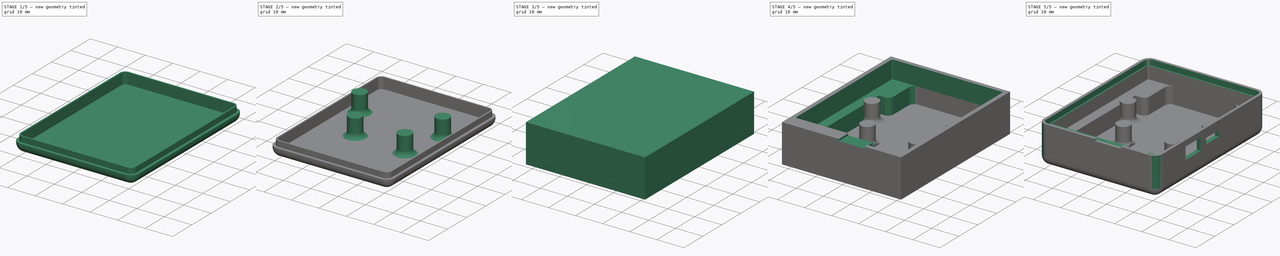
[diagram: build sequence overview — one tinted view per stage of 5, left to right]
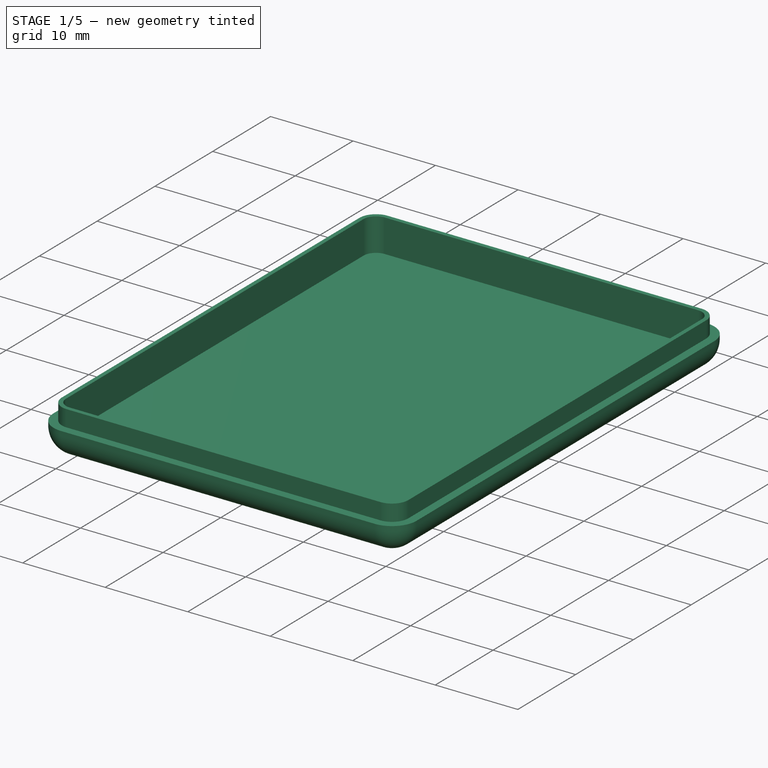
[diagram: stage 1 of 5 — iso view after this stage's code; geometry added in this stage tinted green]
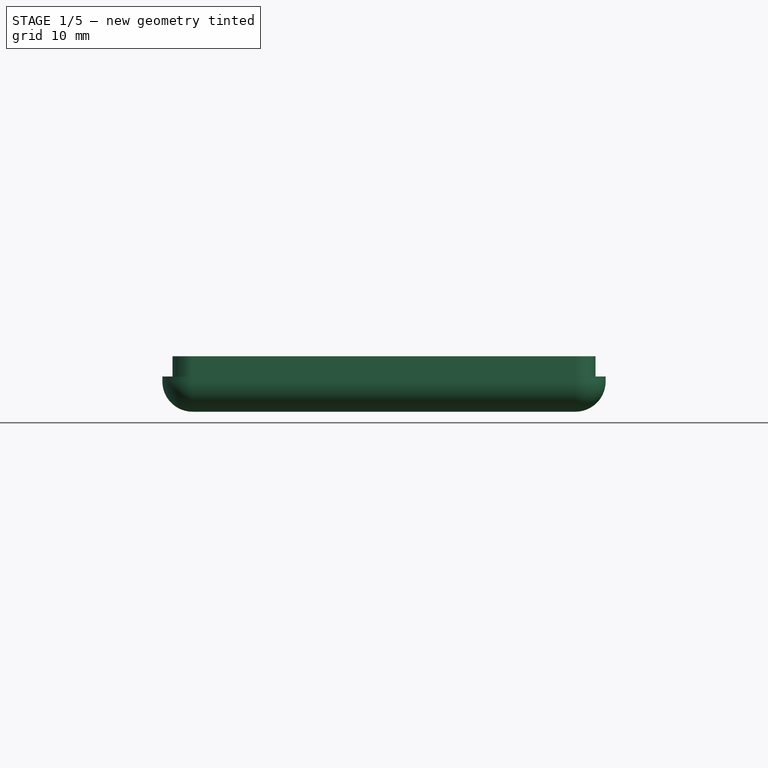
[diagram: stage 1 of 5 — front view after this stage's code; geometry added in this stage tinted green]
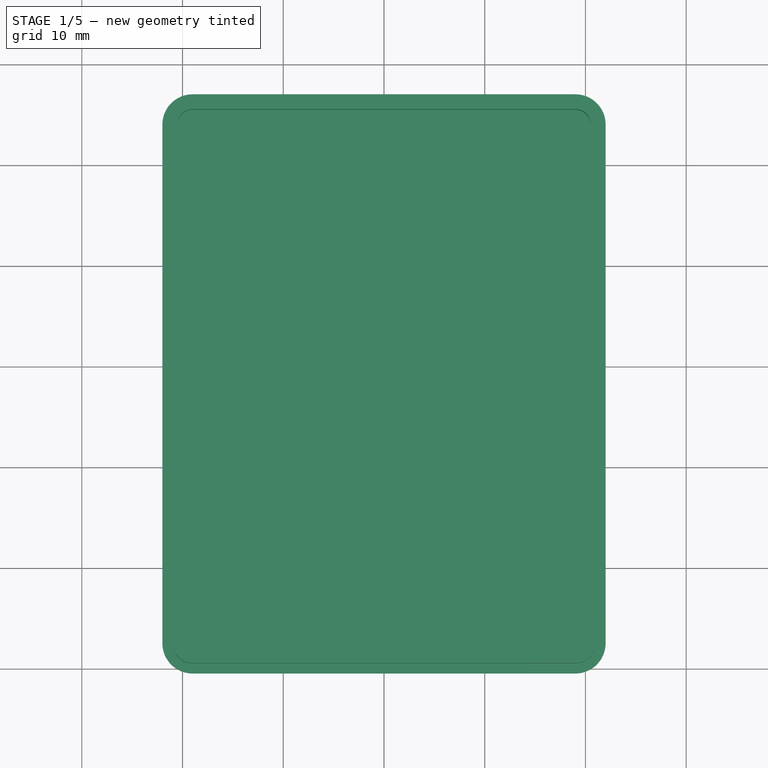
[diagram: stage 1 of 5 — top view after this stage's code; geometry added in this stage tinted green]
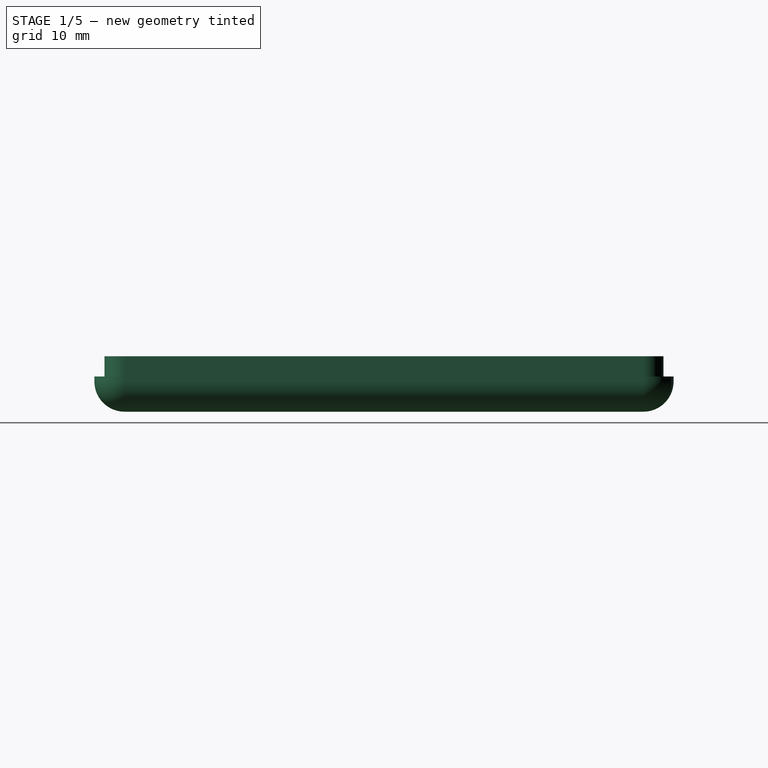
[diagram: stage 1 of 5 — right view after this stage's code; geometry added in this stage tinted green]
FCSTD DOCUMENT  (FreeCAD 0.17R13541 (Git))
Label: case
License: All rights reserved
LicenseURL: http://en.wikipedia.org/wiki/All_rights_reserved
objects: Sketcher::SketchObject×20, PartDesign::Pocket×12, PartDesign::Fillet×9, PartDesign::Pad×6, TechDraw::DrawViewSection×3, App::DocumentObjectGroup×2, PartDesign::Body×2, TechDraw::DrawViewPart×2, Spreadsheet::Sheet×1, TechDraw::DrawSVGTemplate×1, Part::Feature×1, PartDesign::Chamfer×1, TechDraw::DrawPage×1
note: 69 computed .brp shape members not serialized (recipe doc carries the construction recipe); baked Part::Feature solids carry a one-line shape summary decoded from their .brp

FEATURE [Sketcher::SketchObject] Sketch008  label="PCB001"
  MapMode = 2
  Support = -> [XY_Plane001]
  expr: Constraints[8] = Spreadsheet.Width
  expr: Constraints[9] = Spreadsheet.Height
  sketch-geometry (4):
    g0: LineSegment StartX=-20 StartY=25 StartZ=0 EndX=20 EndY=25 EndZ=0
    g1: LineSegment StartX=20 StartY=25 StartZ=0 EndX=20 EndY=-25 EndZ=0
    g2: LineSegment StartX=20 StartY=-25 StartZ=0 EndX=-20 EndY=-25 EndZ=0
    g3: LineSegment StartX=-20 StartY=-25 StartZ=0 EndX=-20 EndY=25 EndZ=0
  constraints (12):
    c: Coincident(g0,g1)
    c: Coincident(g1,g2)
    c: Coincident(g2,g3)
    c: Coincident(g3,g0)
    c: Horizontal(g0)
    c: Horizontal(g2)
    c: Vertical(g1)
    c: Vertical(g3)
    c: DistanceX(g0,g0) = 40
    c: DistanceY(g3,g3) = 50
    c: Symmetric(g0,g0,g-2)
    c: Symmetric(g0,g2,g-1)
FEATURE [Sketcher::SketchObject] Sketch009  label="Outer wall001"
  ExternalGeometry = -> [Sketch]
  MapMode = 5
  Support = -> [XY_Plane001]
  expr: Constraints[11] = Spreadsheet.OuterWall + Spreadsheet.BatteryConnectorDepth
  expr: Constraints[10] = Spreadsheet.OuterWall
  expr: Constraints[9] = Spreadsheet.OuterWall
  expr: Constraints[8] = Spreadsheet.OuterWall
  sketch-geometry (4):
    g0: LineSegment StartX=-22 StartY=27 StartZ=0 EndX=22 EndY=27 EndZ=0
    g1: LineSegment StartX=22 StartY=27 StartZ=0 EndX=22 EndY=-30.5 EndZ=0
    g2: LineSegment StartX=22 StartY=-30.5 StartZ=0 EndX=-22 EndY=-30.5 EndZ=0
    g3: LineSegment StartX=-22 StartY=-30.5 StartZ=0 EndX=-22 EndY=27 EndZ=0
  constraints (12):
    c: Coincident(g0,g1)
    c: Coincident(g1,g2)
    c: Coincident(g2,g3)
    c: Coincident(g3,g0)
    c: Horizontal(g0)
    c: Horizontal(g2)
    c: Vertical(g1)
    c: Vertical(g3)
    c: DistanceY(g-6,g0) = 2
    c: DistanceX(g-6,g0) = 2
    c: DistanceX(g2,g-5) = 2
    c: DistanceY(g2,g-5) = 5.5
FEATURE [PartDesign::Pad] Pad001
  Length = 5.5
  Length2 = 100
  Profile = -> Sketch009
  Type = 0
  expr: Length = Spreadsheet.LidHeight
FEATURE [Sketcher::SketchObject] Sketch010
  MapMode = 5
  Placement = pos=(0,0,5.5) rot=(0,0,1;0rad)
  Support = -> [Pad001]
  expr: Constraints[15] = Spreadsheet.Width + Spreadsheet.OuterWall * 2 - Spreadsheet.LipThickness * 2 - Spreadsheet.LidInnerWall * 2
  expr: Constraints[14] = Spreadsheet.BatteryConnectorDepth / 2
  expr: Constraints[9] = Spreadsheet.Height + Spreadsheet.BatteryConnectorDepth + Spreadsheet.OuterWall * 2 - Spreadsheet.LipThickness * 2 - Spreadsheet.LidInnerWall * 2
  sketch-geometry (5):
    g0: LineSegment StartX=-20.5 StartY=25.5 StartZ=0 EndX=20.5 EndY=25.5 EndZ=0
    g1: LineSegment StartX=20.5 StartY=25.5 StartZ=0 EndX=20.5 EndY=-29 EndZ=0
    g2: LineSegment StartX=20.5 StartY=-29 StartZ=0 EndX=-20.5 EndY=-29 EndZ=0
    g3: LineSegment StartX=-20.5 StartY=-29 StartZ=0 EndX=-20.5 EndY=25.5 EndZ=0
    g4: LineSegment [constr] StartX=-20.5 StartY=-1.75 StartZ=0 EndX=20.5 EndY=-1.75 EndZ=0
  constraints (16):
    c: Coincident(g0,g1)
    c: Coincident(g1,g2)
    c: Coincident(g2,g3)
    c: Coincident(g3,g0)
    c: Horizontal(g0)
    c: Horizontal(g2)
    c: Vertical(g1)
    c: Vertical(g3)
    c: Symmetric(g0,g0,g-2)
    c: DistanceY(g3,g3) = 54.5
    c: PointOnObject(g4,g3)
    c: PointOnObject(g4,g1)
    c: Horizontal(g4)
    c: Symmetric(g0,g2,g4)
    c: DistanceY(g4,g-1) = 1.75
    c: DistanceX(g0,g0) = 41
FEATURE [PartDesign::Pocket] Pocket006
  BaseFeature = -> Pad001
  Length = 4
  Length2 = 100
  Profile = -> Sketch010
  Type = 0
  expr: Length = Spreadsheet.LipHeight + Spreadsheet.LidSpace
FEATURE [Sketcher::SketchObject] Sketch011
  ExternalGeometry = -> [Pocket006]
  MapMode = 5
  Placement = pos=(0,0,5.5) rot=(0,0,1;0rad)
  Support = -> [Pocket006]
  expr: Constraints[26] = Spreadsheet.LipThickness + Spreadsheet.Delta
  expr: Constraints[25] = Spreadsheet.LipThickness + Spreadsheet.Delta
  expr: Constraints[24] = Spreadsheet.LidInnerWall
  expr: Constraints[23] = Spreadsheet.LidInnerWall
  expr: Constraints[18] = Spreadsheet.BatteryConnectorDepth / 2
  sketch-geometry (9):
    g0: LineSegment StartX=-21 StartY=26 StartZ=0 EndX=21 EndY=26 EndZ=0
    g1: LineSegment StartX=21 StartY=26 StartZ=0 EndX=21 EndY=-29.5 EndZ=0
    g2: LineSegment StartX=21 StartY=-29.5 StartZ=0 EndX=-21 EndY=-29.5 EndZ=0
    g3: LineSegment StartX=-21 StartY=-29.5 StartZ=0 EndX=-21 EndY=26 EndZ=0
    g4: LineSegment StartX=-22.01 StartY=27.01 StartZ=0 EndX=22.01 EndY=27.01 EndZ=0
    g5: LineSegment StartX=22.01 StartY=27.01 StartZ=0 EndX=22.01 EndY=-30.51 EndZ=0
    g6: LineSegment StartX=22.01 StartY=-30.51 StartZ=0 EndX=-22.01 EndY=-30.51 EndZ=0
    g7: LineSegment StartX=-22.01 StartY=-30.51 StartZ=0 EndX=-22.01 EndY=27.01 EndZ=0
    g8: LineSegment [constr] StartX=21 StartY=-1.75 StartZ=0 EndX=-21 EndY=-1.75 EndZ=0
  constraints (27):
    c: Coincident(g0,g1)
    c: Coincident(g1,g2)
    c: Coincident(g2,g3)
    c: Coincident(g3,g0)
    c: Horizontal(g0)
    c: Horizontal(g2)
    c: Vertical(g1)
    c: Vertical(g3)
    c: Coincident(g4,g5)
    c: Coincident(g5,g6)
    c: Coincident(g6,g7)
    c: Coincident(g7,g4)
    c: Horizontal(g4)
    c: Horizontal(g6)
    c: Vertical(g5)
    c: Vertical(g7)
    c: PointOnObject(g8,g3)
    c: PointOnObject(g8,g1)
    c: DistanceY(g8,g-1) = 1.75
    c: Symmetric(g2,g0,g8)
    c: Symmetric(g4,g6,g8)
    c: Symmetric(g0,g0,g-2)
    c: Symmetric(g4,g4,g-2)
    c: DistanceX(g0,g-3) = 0.5
    c: DistanceY(g-3,g0) = 0.5
    c: DistanceX(g0,g4) = 1.01
    c: DistanceY(g0,g4) = 1.01
FEATURE [PartDesign::Pocket] Pocket007
  BaseFeature = -> Pocket006
  Length = 2
  Length2 = 100
  Profile = -> Sketch011
  Type = 0
  expr: Length = Spreadsheet.LipHeight
FEATURE [PartDesign::Fillet] Fillet006  label="LipInternalFillet"
  Base = -> Pocket007 [Edge32,Edge29,Edge34,Edge30]
  BaseFeature = -> Pocket007
  Radius = 1.5
  expr: Radius = Spreadsheet.LidInnerFillet
FEATURE [PartDesign::Fillet] Fillet007  label="LipExternalFillet"
  Base = -> Fillet006 [Edge30,Edge29,Edge34,Edge32]
  BaseFeature = -> Fillet006
  Radius = 2
  expr: Radius = Spreadsheet.LidMatingFillet
FEATURE [PartDesign::Fillet] Fillet008  label="ExternalFillet"
  Base = -> Fillet007 [Edge55,Edge54,Edge59,Edge57,Face24]
  BaseFeature = -> Fillet007
  Radius = 3
  expr: Radius = Spreadsheet.LidOuterFillet
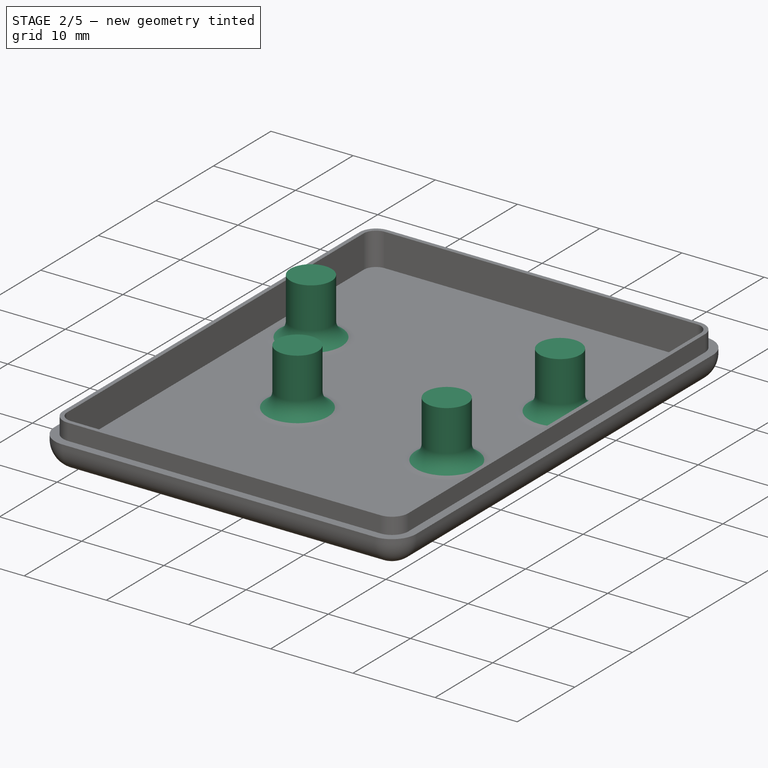
[diagram: stage 2 of 5 — iso view after this stage's code; geometry added in this stage tinted green]
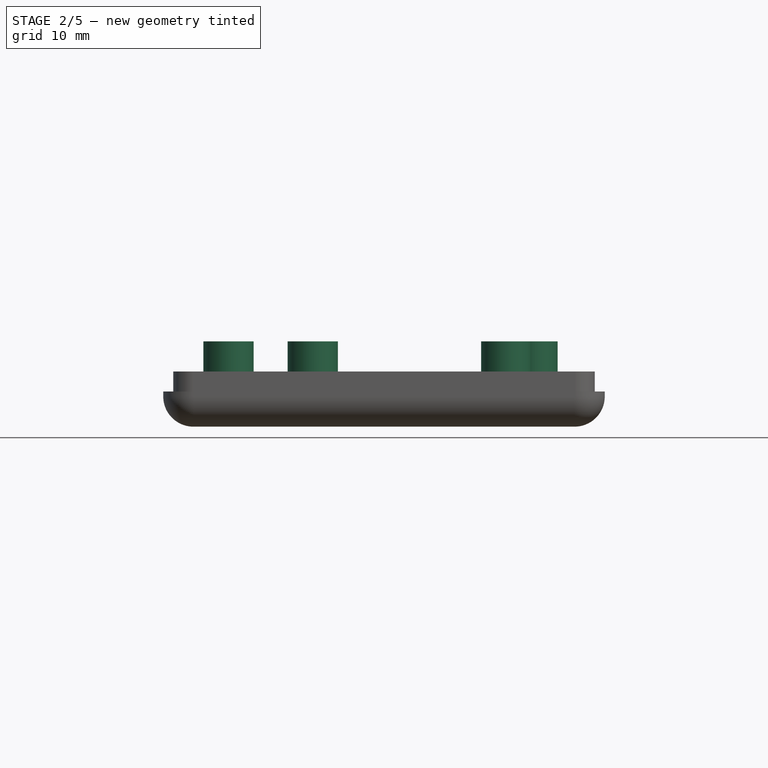
[diagram: stage 2 of 5 — front view after this stage's code; geometry added in this stage tinted green]
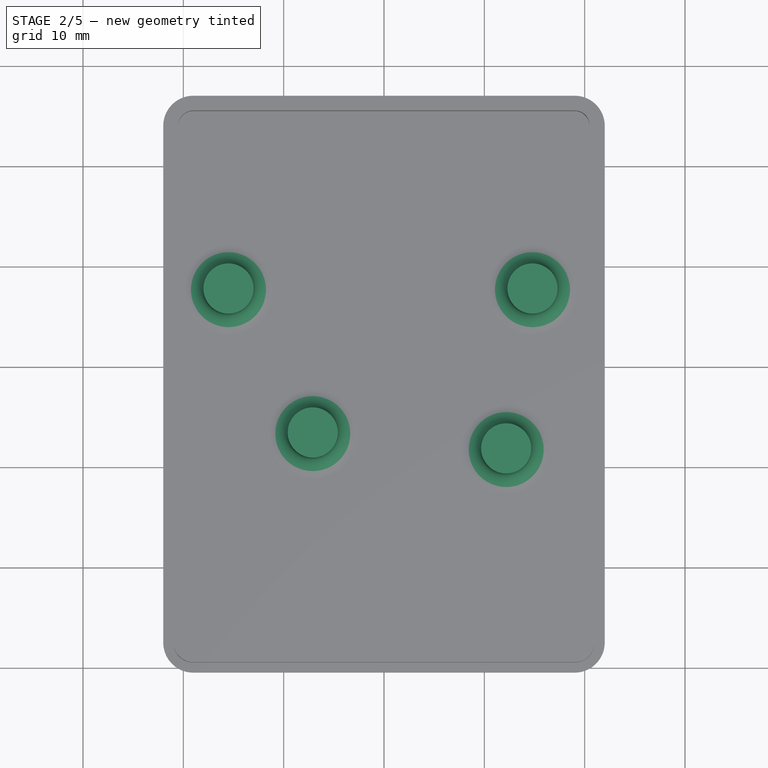
[diagram: stage 2 of 5 — top view after this stage's code; geometry added in this stage tinted green]
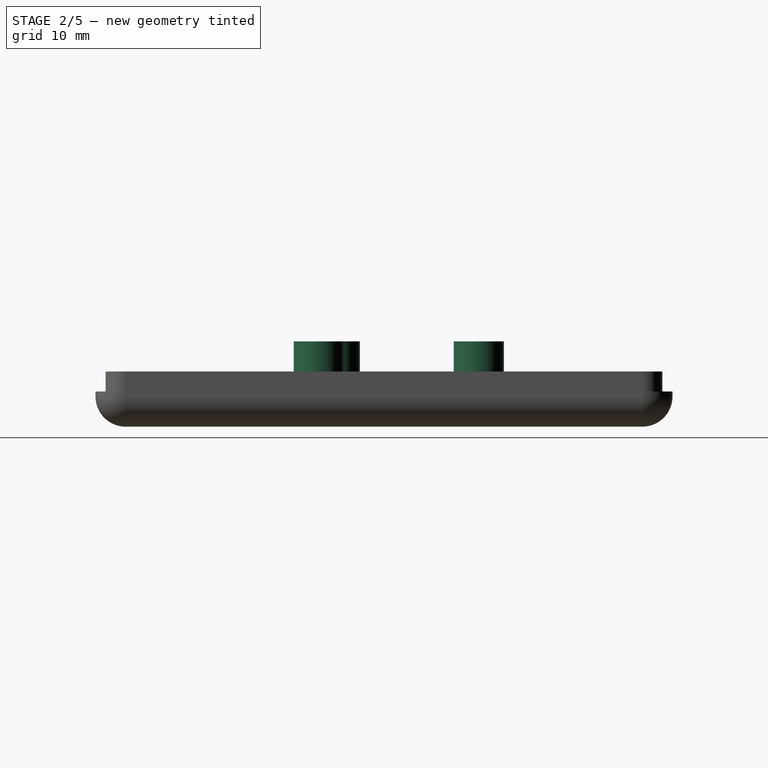
[diagram: stage 2 of 5 — right view after this stage's code; geometry added in this stage tinted green]
FEATURE [Sketcher::SketchObject] Sketch012
  ExternalGeometry = -> [Sketch008]
  MapMode = 5
  Placement = pos=(0,0,1.5) rot=(0,0,1;0rad)
  Support = -> [Fillet008]
  sketch-geometry (1):
    g0: Circle CenterX=-7.1 CenterY=-6.65 CenterZ=0 NormalX=0 NormalY=0 NormalZ=1 AngleXU=0 Radius=2.5
  constraints (3):
    c: Radius(g0) = 2.5
    c: DistanceY(g-3,g0) = 18.35
    c: DistanceX(g0,g-3) = 27.1
FEATURE [PartDesign::Pad] Pad002
  BaseFeature = -> Fillet008
  Length = 7
  Length2 = 100
  Profile = -> Sketch012
  Type = 0
  expr: Length = Spreadsheet.LidSpace + Spreadsheet.PCBtoLid
FEATURE [Sketcher::SketchObject] Sketch013
  ExternalGeometry = -> [Sketch008]
  MapMode = 5
  Placement = pos=(0,0,1.5) rot=(0,0,1;0rad)
  Support = -> [Fillet008]
  sketch-geometry (1):
    g0: Circle CenterX=12.18 CenterY=-8.24 CenterZ=0 NormalX=0 NormalY=0 NormalZ=1 AngleXU=0 Radius=2.5
  constraints (3):
    c: Radius(g0) = 2.5
    c: DistanceY(g-3,g0) = 16.76
    c: DistanceX(g0,g-3) = 7.82
FEATURE [Sketcher::SketchObject] Sketch014
  ExternalGeometry = -> [Sketch008]
  MapMode = 5
  Placement = pos=(0,0,1.5) rot=(0,0,1;0rad)
  Support = -> [Fillet008]
  sketch-geometry (1):
    g0: Circle CenterX=14.8 CenterY=7.7 CenterZ=0 NormalX=0 NormalY=0 NormalZ=1 AngleXU=0 Radius=2.5
  constraints (3):
    c: Radius(g0) = 2.5
    c: DistanceY(g-3,g0) = 32.7
    c: DistanceX(g0,g-3) = 5.2
FEATURE [Sketcher::SketchObject] Sketch015
  ExternalGeometry = -> [Sketch008]
  MapMode = 5
  Placement = pos=(0,0,1.5) rot=(0,0,1;0rad)
  Support = -> [Fillet008]
  sketch-geometry (1):
    g0: Circle CenterX=-15.5 CenterY=7.7 CenterZ=0 NormalX=0 NormalY=0 NormalZ=1 AngleXU=0 Radius=2.5
  constraints (3):
    c: Radius(g0) = 2.5
    c: DistanceY(g-3,g0) = 32.7
    c: DistanceX(g0,g-3) = 35.5
FEATURE [PartDesign::Pad] Pad003
  BaseFeature = -> Pad002
  Length = 7
  Length2 = 100
  Profile = -> Sketch013
  Type = 0
  expr: Length = Spreadsheet.LidSpace + Spreadsheet.PCBtoLid
FEATURE [PartDesign::Pad] Pad004
  BaseFeature = -> Pad003
  Length = 7
  Length2 = 100
  Profile = -> Sketch014
  Type = 0
  expr: Length = Spreadsheet.LidSpace + Spreadsheet.PCBtoLid
FEATURE [PartDesign::Pad] Pad005
  BaseFeature = -> Pad004
  Length = 7
  Length2 = 100
  Profile = -> Sketch015
  Type = 0
  expr: Length = Spreadsheet.LidSpace + Spreadsheet.PCBtoLid
FEATURE [PartDesign::Fillet] Fillet009
  Base = -> Pad005 [Edge90,Edge91,Edge89,Edge92]
  BaseFeature = -> Pad005
  Radius = 2
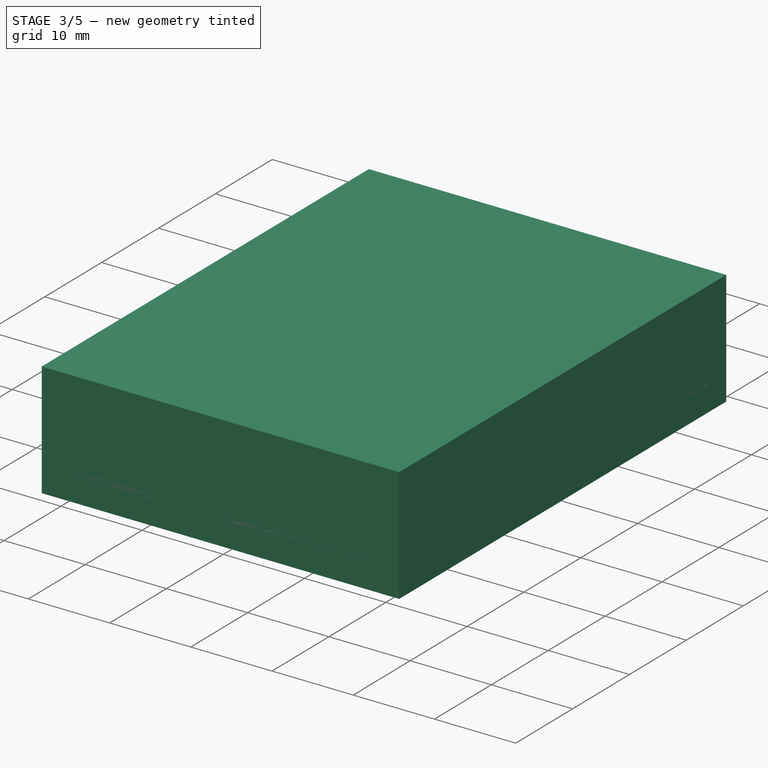
[diagram: stage 3 of 5 — iso view after this stage's code; geometry added in this stage tinted green]
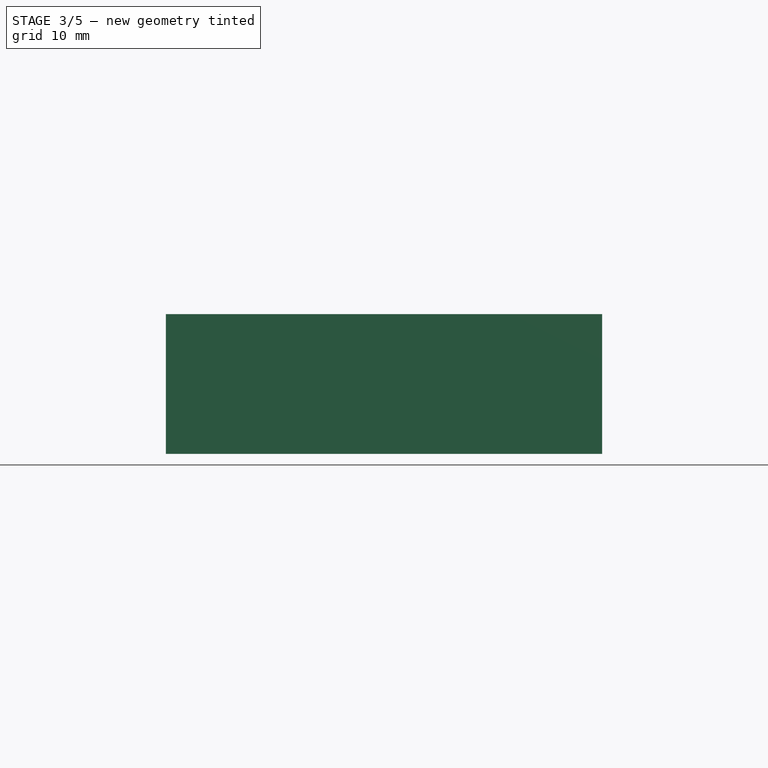
[diagram: stage 3 of 5 — front view after this stage's code; geometry added in this stage tinted green]
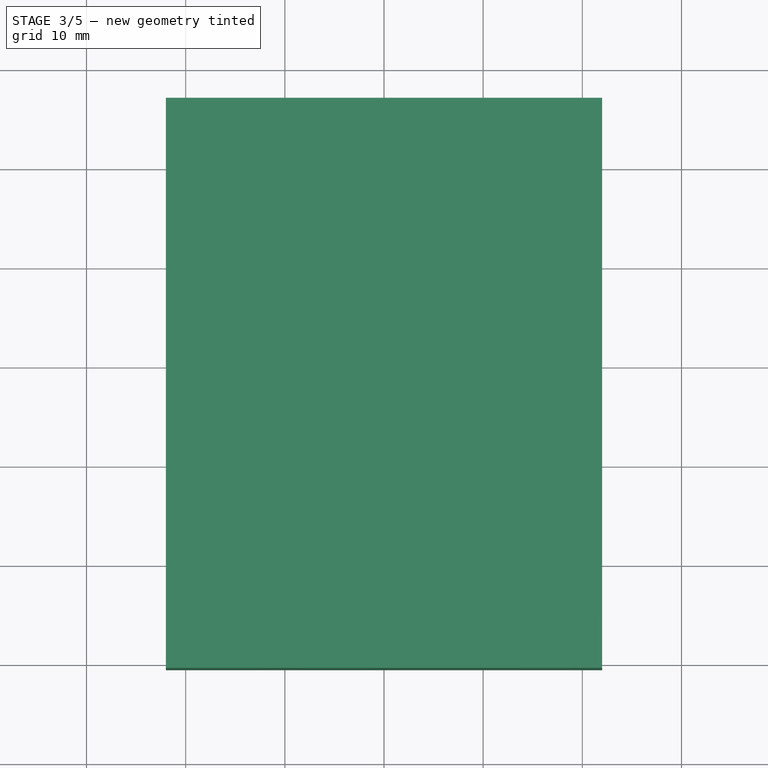
[diagram: stage 3 of 5 — top view after this stage's code; geometry added in this stage tinted green]
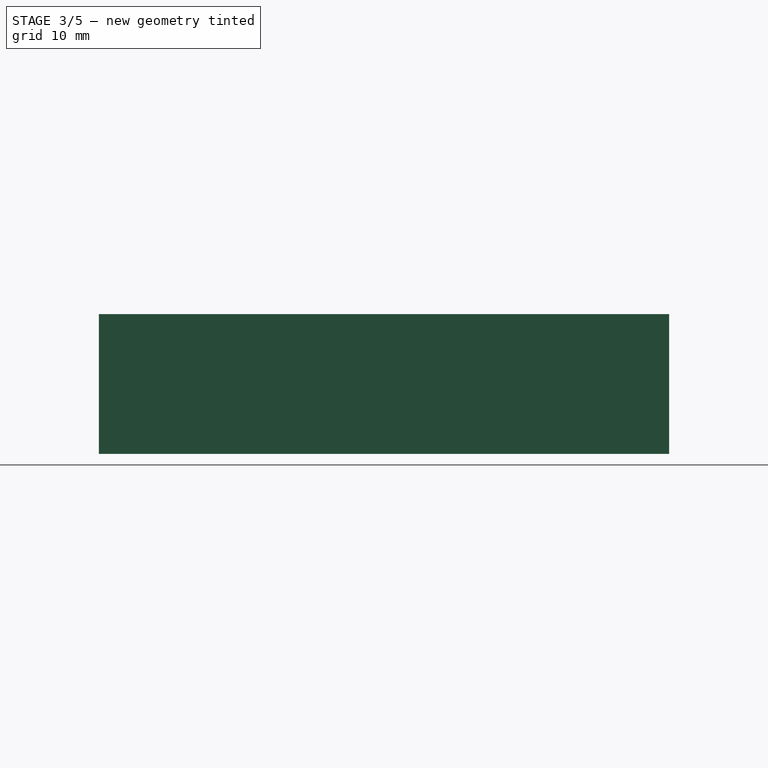
[diagram: stage 3 of 5 — right view after this stage's code; geometry added in this stage tinted green]
FEATURE [Sketcher::SketchObject] Sketch  label="PCB"
  MapMode = 5
  Support = -> [XY_Plane]
  expr: Constraints[8] = Spreadsheet.Width
  expr: Constraints[9] = Spreadsheet.Height
  sketch-geometry (4):
    g0: LineSegment StartX=-20 StartY=25 StartZ=0 EndX=20 EndY=25 EndZ=0
    g1: LineSegment StartX=20 StartY=25 StartZ=0 EndX=20 EndY=-25 EndZ=0
    g2: LineSegment StartX=20 StartY=-25 StartZ=0 EndX=-20 EndY=-25 EndZ=0
    g3: LineSegment StartX=-20 StartY=-25 StartZ=0 EndX=-20 EndY=25 EndZ=0
  constraints (12):
    c: Coincident(g0,g1)
    c: Coincident(g1,g2)
    c: Coincident(g2,g3)
    c: Coincident(g3,g0)
    c: Horizontal(g0)
    c: Horizontal(g2)
    c: Vertical(g1)
    c: Vertical(g3)
    c: DistanceX(g0,g0) = 40
    c: DistanceY(g3,g3) = 50
    c: Symmetric(g0,g0,g-2)
    c: Symmetric(g0,g2,g-1)
FEATURE [Spreadsheet::Sheet] Spreadsheet
  cells = A1=PCB Width; B1(Width)==40mm; G1=Delta; H1(Delta)==0.01mm; A2=PCB Height; B2(Height)==50mm; D2=Battery Width; E2(BatteryWidth)==31mm; A3=Ledge; B3(Ledge)==3mm; D3=Battery Depth; E3(BatteryDepth)==38mm; G3=Logo Depth; H3(LogoDepth)==0.5mm; A4=Wall Thickness; B4(WallThickness)==1.5mm; D4=Battery Height; E4(BatteryHeight)==6mm; A5=Clearance; B5(Clearance)==0.5mm; A6=Outer Wall; B6(OuterWall)==WallThickness + Clearance; D6=Battery Connector Depth; E6(BatteryConnectorDepth)==3.5mm; A7=Total height; B7(TotalHeight)==WallThickness + BatteryHeight + PCBtoLid + PCBThickness; D7=Battery Connector X; E7(BatteryConnectorX)==28.600000000000001mm; D8=Battery Connector Height; E8(BatteryConnectorHeight)==5mm; A9=PCB to lid; B9(PCBtoLid)==5mm; D9=Battery Connector Width; E9(BatteryConnectorWidth)==6mm; A10=PCB Thickness; B10(PCBThickness)==1.6000000000000001mm; A11=LedgeToLid; B11(LedgeToLid)==TotalHeight - WallThickness - BatteryHeight; D11=UART Width; E11(UARTWidth)==2.54 * 3mm + 1mm; G11=UART Clearance; H11(UARTClearance)==0.5mm; A12=AntennaGap; B12(AntennaGap)==BatteryWidth - 5mm; D12=UART Height; E12(UARTHeight)==2.54mm; A13=AntennaKeepout; B13(AntennaKeepout)==12mm; D13=UART Position X; E13(UARTPosX)==20mm - 0.5mm; G13=UART Position Y; H13(UARTPosY)==4.7999999999999998mm; A14=LedgeHeight; B14(LedgeHeight)==WallThickness + BatteryHeight; D15=USB Width; E15(USBWidth)==8mm; A16=Lip Height; B16(LipHeight)==2mm; D16=USB Height; E16(USBHeight)==4.5mm; A17=Lip Thickness; B17(LipThickness)==1mm; D17=USB Position X; E17(USBPosX)==9.5500000000000007mm; A19=LidSpace; B19(LidSpace)==2mm; D19=Switch Width; E19(SwitchWidth)==6.7000000000000002mm; G19=Switch Clearance; H19(SwitchClearance)==0.5mm; A20=LidHeight; B20(LidHeight)==WallThickness + LipHeight + LidSpace; D20=Switch Height; E20(SwitchHeight)==1.1000000000000001mm; A21=LidInnerWall; B21(LidInnerWall)==WallThickness - LipThickness; D21=Switch Position X; E21(SwitchPosX)==20.399999999999999mm; A23=LidInnerFillet; B23(LidInnerFillet)==LidMatingFillet - LidInnerWall; D23=BaseMainFillet; E23(BaseMainFillet)==3mm; A24=LidMatingFillet; B24(LidMatingFillet)==2mm; D24=LidMainFillet; E24(LidMainFillet)==3mm; A25=LidOuterFillet; B25(LidOuterFillet)==3mm; A27=DebugX; B27(DebugRealX)==20.335000000000001mm; D27=X and Y are centre points; A28=DebugY; B28(DebugRealY)==19.25mm; D28=DebugVisible; E28(DebugVisible)=1; A29=DebugWidth; B29(DebugWidth)==8mm; D29=Debug X (computed); E29(DebugX)==DebugRealX + 2 * Width * (1 - DebugVisible); A30=DebugHeight; B30(DebugHeight)==12mm; D30=Debug Y (computed); E30(DebugY)==DebugRealY; A31=DebugDepth; B31(DebugDepth)==LidSpace + PCBtoLid + WallThickness; A33=LEDX; B33(LEDRealX)==3mm; D33=X and Y are centre points; A34=LEDY; B34(LEDRealY)==20mm; D34=LEDVisible; E34(LEDVisible)=1; A35=LEDWidth; B35(LEDWidth)==6mm; D35=LED X (computed); E35(LEDX)==LEDRealX + 2 * Width * (1 - LEDVisible); A36=LEDHeight; B36(LEDHeight)==12mm; D36=LED Y (computed); E36(LEDY)==LEDRealY; A37=LEDDepth; B37(LEDDepth)==LidSpace + PCBtoLid + WallThickness
FEATURE [Sketcher::SketchObject] Sketch001  label="Outer wall"
  ExternalGeometry = -> [Sketch]
  MapMode = 5
  Support = -> [XY_Plane]
  expr: Constraints[11] = Spreadsheet.OuterWall + Spreadsheet.BatteryConnectorDepth
  expr: Constraints[10] = Spreadsheet.OuterWall
  expr: Constraints[9] = Spreadsheet.OuterWall
  expr: Constraints[8] = Spreadsheet.OuterWall
  sketch-geometry (4):
    g0: LineSegment StartX=-22 StartY=27 StartZ=0 EndX=22 EndY=27 EndZ=0
    g1: LineSegment StartX=22 StartY=27 StartZ=0 EndX=22 EndY=-30.5 EndZ=0
    g2: LineSegment StartX=22 StartY=-30.5 StartZ=0 EndX=-22 EndY=-30.5 EndZ=0
    g3: LineSegment StartX=-22 StartY=-30.5 StartZ=0 EndX=-22 EndY=27 EndZ=0
  constraints (12):
    c: Coincident(g0,g1)
    c: Coincident(g1,g2)
    c: Coincident(g2,g3)
    c: Coincident(g3,g0)
    c: Horizontal(g0)
    c: Horizontal(g2)
    c: Vertical(g1)
    c: Vertical(g3)
    c: DistanceY(g-6,g0) = 2
    c: DistanceX(g-6,g0) = 2
    c: DistanceX(g2,g-5) = 2
    c: DistanceY(g2,g-5) = 5.5
FEATURE [PartDesign::Pad] Pad
  Length = 14.1
  Length2 = 100
  Profile = -> Sketch001
  Type = 0
  expr: Length = Spreadsheet.TotalHeight
FEATURE [Part::Feature] Polyline002
  Placement = pos=(-204.41,-116.16,0) rot=(0.707107,0.707107,0;3.14159rad)
  shape: bbox 14.03 x 39.82 x 2e-07 mm, 0 faces, 0 solids (baked)
FEATURE [App::DocumentObjectGroup] Layer_1
  Group = -> [Polyline002]
FEATURE [App::DocumentObjectGroup] tail_logo_simplified_scaled  label="tail-logo-simplified-scaled"
  Group = -> [Layer_1]
FEATURE [Sketcher::SketchObject] Sketch017
  AttachmentOffset = pos=(-50,0,0) rot=(0,0,1;3.14159rad)
  MapMode = 5
  Placement = pos=(-50,0,0) rot=(0,-1,0;3.14159rad)
  Support = -> [Fillet009]
  sketch-geometry (50):
    g0: LineSegment StartX=-57.0031 StartY=-20.6072 StartZ=0 EndX=-56.5389 EndY=-15.1377 EndZ=0
    g1: LineSegment StartX=-56.5389 StartY=-15.1377 StartZ=0 EndX=-55.61 EndY=-3.85141 EndZ=0
    g2: LineSegment StartX=-55.61 StartY=-3.85141 StartZ=0 EndX=-55.208 EndY=-0.116425 EndZ=0
    g3: LineSegment StartX=-55.208 StartY=-0.116425 StartZ=0 EndX=-54.5963 EndY=3.58831 EndZ=0
    g4: LineSegment StartX=-54.5963 StartY=3.58831 StartZ=0 EndX=-54.4168 EndY=4.24849 EndZ=0
    g5: LineSegment StartX=-54.4168 StartY=4.24849 StartZ=0 EndX=-54.0471 EndY=4.80277 EndZ=0
    g6: LineSegment StartX=-54.0471 StartY=4.80277 StartZ=0 EndX=-53.6619 EndY=4.78276 EndZ=0
    g7: LineSegment StartX=-53.6619 StartY=4.78276 StartZ=0 EndX=-53.4456 EndY=4.62006 EndZ=0
    g8: LineSegment StartX=-53.4456 StartY=4.62006 StartZ=0 EndX=-52.6451 EndY=3.49926 EndZ=0
    g9: LineSegment StartX=-52.6451 StartY=3.49926 StartZ=0 EndX=-51.4049 EndY=1.1241 EndZ=0
    g10: LineSegment StartX=-51.4049 StartY=1.1241 StartZ=0 EndX=-50.1539 EndY=-2.35081 EndZ=0
    g11: LineSegment StartX=-50.1539 StartY=-2.35081 StartZ=0 EndX=-49.0613 EndY=-5.87998 EndZ=0
    g12: LineSegment StartX=-49.0613 StartY=-5.87998 StartZ=0 EndX=-46.5059 EndY=-14.6948 EndZ=0
    g13: LineSegment StartX=-46.5059 StartY=-14.6948 StartZ=0 EndX=-46.1011 EndY=-15.8101 EndZ=0
    g14: LineSegment StartX=-46.1011 StartY=-15.8101 StartZ=0 EndX=-45.5672 EndY=-17.788 EndZ=0
    g15: LineSegment StartX=-45.5672 StartY=-17.788 StartZ=0 EndX=-45.2895 EndY=-18.5875 EndZ=0
    g16: LineSegment StartX=-45.2895 StartY=-18.5875 StartZ=0 EndX=-45.0246 EndY=-18.9871 EndZ=0
    g17: LineSegment StartX=-45.0246 StartY=-18.9871 StartZ=0 EndX=-44.7876 EndY=-18.7816 EndZ=0
    g18: LineSegment StartX=-44.7876 StartY=-18.7816 StartZ=0 EndX=-44.5935 EndY=-17.7657 EndZ=0
    g19: LineSegment StartX=-44.5935 StartY=-17.7657 StartZ=0 EndX=-44.4069 EndY=-16.4086 EndZ=0
    g20: LineSegment StartX=-44.4069 StartY=-16.4086 StartZ=0 EndX=-44.0859 EndY=-12.5634 EndZ=0
    g21: LineSegment StartX=-44.0859 StartY=-12.5634 StartZ=0 EndX=-43.531 EndY=-1.51791 EndZ=0
    g22: LineSegment StartX=-43.531 StartY=-1.51791 StartZ=0 EndX=-43.441 EndY=4.49482 EndZ=0
    g23: LineSegment StartX=-43.441 StartY=4.49482 StartZ=0 EndX=-43.5199 EndY=11.3423 EndZ=0
    g24: LineSegment StartX=-43.5199 StartY=11.3423 StartZ=0 EndX=-43.7678 EndY=18.1858 EndZ=0
    g25: LineSegment StartX=-43.7678 StartY=18.1858 StartZ=0 EndX=-43.1514 EndY=17.3432 EndZ=0
    g26: LineSegment StartX=-43.1514 StartY=17.3432 StartZ=0 EndX=-42.9756 EndY=3.85285 EndZ=0
    g27: LineSegment StartX=-42.9756 StartY=3.85285 StartZ=0 EndX=-43.0679 EndY=-2.16009 EndZ=0
    g28: LineSegment StartX=-43.0679 StartY=-2.16009 StartZ=0 EndX=-43.543 EndY=-13.3211 EndZ=0
    g29: LineSegment StartX=-43.543 StartY=-13.3211 StartZ=0 EndX=-43.7977 EndY=-17.269 EndZ=0
    g30: LineSegment StartX=-43.7977 StartY=-17.269 StartZ=0 EndX=-43.9512 EndY=-18.6831 EndZ=0
    g31: LineSegment StartX=-43.9512 StartY=-18.6831 StartZ=0 EndX=-44.0696 EndY=-19.4801 EndZ=0
    g32: LineSegment StartX=-44.0696 StartY=-19.4801 StartZ=0 EndX=-44.3278 EndY=-20.3046 EndZ=0
    g33: LineSegment StartX=-44.3278 StartY=-20.3046 StartZ=0 EndX=-44.614 EndY=-20.501 EndZ=0
    g34: LineSegment StartX=-44.614 StartY=-20.501 StartZ=0 EndX=-45.4436 EndY=-19.2496 EndZ=0
    g35: LineSegment StartX=-45.4436 StartY=-19.2496 StartZ=0 EndX=-45.9697 EndY=-17.7923 EndZ=0
    g36: LineSegment StartX=-45.9697 StartY=-17.7923 StartZ=0 EndX=-47.1333 EndY=-13.8801 EndZ=0
    g37: LineSegment StartX=-47.1333 StartY=-13.8801 StartZ=0 EndX=-49.7019 EndY=-5.05119 EndZ=0
    g38: LineSegment StartX=-49.7019 StartY=-5.05119 StartZ=0 EndX=-50.8207 EndY=-1.48317 EndZ=0
    g39: LineSegment StartX=-50.8207 StartY=-1.48317 StartZ=0 EndX=-52.1181 EndY=2.02236 EndZ=0
    g40: LineSegment StartX=-52.1181 StartY=2.02236 StartZ=0 EndX=-52.5283 EndY=2.85582 EndZ=0
    g41: LineSegment StartX=-52.5283 StartY=2.85582 StartZ=0 EndX=-53.1363 EndY=3.64534 EndZ=0
    g42: LineSegment StartX=-53.1363 StartY=3.64534 StartZ=0 EndX=-53.4054 EndY=3.72498 EndZ=0
    g43: LineSegment StartX=-53.4054 StartY=3.72498 StartZ=0 EndX=-53.7459 EndY=3.22165 EndZ=0
    g44: LineSegment StartX=-53.7459 StartY=3.22165 StartZ=0 EndX=-53.9305 EndY=2.62678 EndZ=0
    g45: LineSegment StartX=-53.9305 StartY=2.62678 StartZ=0 EndX=-54.6145 EndY=-0.988496 EndZ=0
    g46: LineSegment StartX=-54.6145 StartY=-0.988496 StartZ=0 EndX=-55.044 EndY=-4.64533 EndZ=0
    g47: LineSegment StartX=-55.044 StartY=-4.64533 StartZ=0 EndX=-55.9379 EndY=-15.9775 EndZ=0
    g48: LineSegment StartX=-55.9379 StartY=-15.9775 StartZ=0 EndX=-56.2776 EndY=-21.6384 EndZ=0
    g49: LineSegment StartX=-56.2776 StartY=-21.6384 StartZ=0 EndX=-57.0031 EndY=-20.6072 EndZ=0
  constraints (100):
    c: Coincident(g0,g1)
    c: Coincident(g1,g2)
    c: Coincident(g2,g3)
    c: Coincident(g3,g4)
    c: Coincident(g4,g5)
    c: Coincident(g5,g6)
    c: Coincident(g6,g7)
    c: Coincident(g7,g8)
    c: Coincident(g8,g9)
    c: Coincident(g9,g10)
    c: Coincident(g10,g11)
    c: Coincident(g11,g12)
    c: Coincident(g12,g13)
    c: Coincident(g13,g14)
    c: Coincident(g14,g15)
    c: Coincident(g15,g16)
    c: Coincident(g16,g17)
    c: Coincident(g17,g18)
    c: Coincident(g18,g19)
    c: Coincident(g19,g20)
    c: Coincident(g20,g21)
    c: Coincident(g21,g22)
    c: Coincident(g22,g23)
    c: Coincident(g23,g24)
    c: Coincident(g24,g25)
    c: Coincident(g25,g26)
    c: Coincident(g26,g27)
    c: Coincident(g27,g28)
    c: Coincident(g28,g29)
    c: Coincident(g29,g30)
    c: Coincident(g30,g31)
    c: Coincident(g31,g32)
    c: Coincident(g32,g33)
    c: Coincident(g33,g34)
    c: Coincident(g34,g35)
    c: Coincident(g35,g36)
    c: Coincident(g36,g37)
    c: Coincident(g37,g38)
    c: Coincident(g38,g39)
    c: Coincident(g39,g40)
    c: Coincident(g40,g41)
    c: Coincident(g41,g42)
    c: Coincident(g42,g43)
    c: Coincident(g43,g44)
    c: Coincident(g44,g45)
    c: Coincident(g45,g46)
    c: Coincident(g46,g47)
    c: Coincident(g47,g48)
    c: Coincident(g48,g49)
    c: Coincident(g49,g0)
    c: Block(g49)
    c: Block(g0)
    c: Block(g1)
    c: Block(g2)
    c: Block(g3)
    c: Block(g4)
    c: Block(g5)
    c: Block(g6)
    c: Block(g7)
    c: Block(g8)
    c: Block(g9)
    c: Block(g10)
    c: Block(g11)
    c: Block(g12)
    c: Block(g13)
    c: Block(g14)
    c: Block(g15)
    c: Block(g16)
    c: Block(g17)
    c: Block(g18)
    c: Block(g19)
    c: Block(g20)
    c: Block(g21)
    c: Block(g22)
    c: Block(g23)
    c: Block(g24)
    c: Block(g25)
    c: Block(g26)
    c: Block(g27)
    c: Block(g28)
    c: Block(g29)
    c: Block(g30)
    c: Block(g31)
    c: Block(g32)
    c: Block(g33)
    c: Block(g34)
    c: Block(g35)
    c: Block(g36)
    c: Block(g37)
    c: Block(g38)
    c: Block(g39)
    c: Block(g40)
    c: Block(g41)
    c: Block(g42)
    c: Block(g43)
    c: Block(g44)
    c: Block(g45)
    c: Block(g46)
    c: Block(g47)
    c: Block(g48)
FEATURE [PartDesign::Pocket] Pocket008  label="Tail logo"
  BaseFeature = -> Fillet009
  Length = 0.5
  Length2 = 100
  Profile = -> Sketch017
  Type = 0
  expr: Length = Spreadsheet.LogoDepth
FEATURE [PartDesign::Chamfer] Chamfer
  Base = -> Pocket008 [Face48]
  BaseFeature = -> Pocket008
  Size = 0.2
FEATURE [PartDesign::Body] Body
  Group = -> [Sketch,Sketch001,Pad,Sketch002,Pocket,Sketch003,Pocket001,Sketch004,Pocket002,Fillet,Fillet001,Fillet002,Sketch005,Pocket003,Sketch006,Pocket004,Sketch007,Pocket005,Fillet004,Fillet010]
  Origin = -> Origin
  Tip = -> Fillet010
FEATURE [TechDraw::DrawViewPart] View  label="Body Top View"
  CoarseView = false
  Direction = (0,0,1)
  Focus = 100
  HardHidden = false
  IsoCount = 0
  IsoHidden = false
  IsoVisible = false
  LockPosition = false
  Perspective = false
  Rotation = 0
  ScaleType = 0
  SeamHidden = false
  SeamVisible = false
  SmoothHidden = false
  SmoothVisible = false
  Source = -> [Body]
  X = 48.708
  Y = 156.697
FEATURE [TechDraw::DrawViewSection] Section  label="Section UART"
  BaseView = -> View
  CoarseView = false
  Direction = (0,1,0)
  Focus = 100
  HardHidden = false
  HatchScale = 1
  IsoCount = 0
  IsoHidden = false
  IsoVisible = false
  LockPosition = false
  NameGeomPattern = Diamond
  Perspective = false
  Rotation = 0
  ScaleType = 0
  SeamHidden = false
  SeamVisible = false
  SectionDirection = 3
  SectionNormal = (0,1,0)
  SectionOrigin = (0,-2.5,7.05)
  SectionSymbol = UART
  SmoothHidden = false
  SmoothVisible = false
  Source = -> [Body]
  X = 49.0163
  Y = 104.451
FEATURE [TechDraw::DrawViewSection] Section001  label="Section Power"
  BaseView = -> View
  CoarseView = false
  Direction = (-1,0,0)
  Focus = 100
  HardHidden = false
  HatchScale = 1
  IsoCount = 0
  IsoHidden = false
  IsoVisible = false
  LockPosition = false
  NameGeomPattern = Diamond
  Perspective = false
  Rotation = 0
  ScaleType = 0
  SeamHidden = false
  SeamVisible = false
  SectionDirection = 0
  SectionNormal = (-1,0,0)
  SectionOrigin = (0,-2.5,7.05)
  SectionSymbol = Power
  SmoothHidden = false
  SmoothVisible = false
  Source = -> [Body]
  X = 117.687
  Y = 152.795
FEATURE [Sketcher::SketchObject] Sketch018
  MapMode = 5
  Placement = pos=(0,-30.5,0) rot=(1,0,0;1.5708rad)
  Support = -> [Chamfer]
  expr: Constraints[11] = Spreadsheet.WallThickness + Spreadsheet.PCBtoLid - Spreadsheet.UARTPosY
  expr: Constraints[10] = Spreadsheet.UARTHeight + Spreadsheet.LidSpace + Spreadsheet.WallThickness
  expr: Constraints[9] = Spreadsheet.UARTWidth + Spreadsheet.Clearance * 2
  expr: Constraints[8] = Spreadsheet.Width / 2 - Spreadsheet.UARTPosX + Spreadsheet.Clearance
  sketch-geometry (4):
    g0: LineSegment StartX=-8.62 StartY=7.74 StartZ=0 EndX=1 EndY=7.74 EndZ=0
    g1: LineSegment StartX=1 StartY=7.74 StartZ=0 EndX=1 EndY=1.7 EndZ=0
    g2: LineSegment StartX=1 StartY=1.7 StartZ=0 EndX=-8.62 EndY=1.7 EndZ=0
    g3: LineSegment StartX=-8.62 StartY=1.7 StartZ=0 EndX=-8.62 EndY=7.74 EndZ=0
  constraints (12):
    c: Coincident(g0,g1)
    c: Coincident(g1,g2)
    c: Coincident(g2,g3)
    c: Coincident(g3,g0)
    c: Horizontal(g0)
    c: Horizontal(g2)
    c: Vertical(g1)
    c: Vertical(g3)
    c: DistanceX(g-1,g1) = 1
    c: DistanceX(g0,g0) = 9.62
    c: DistanceY(g3,g3) = 6.04
    c: DistanceY(g-1,g1) = 1.7
FEATURE [PartDesign::Pocket] Pocket009  label="PocketUART"
  BaseFeature = -> Chamfer
  Length = 1.5
  Length2 = 100
  Profile = -> Sketch018
  Type = 0
  expr: Length = Spreadsheet.WallThickness
FEATURE [Sketcher::SketchObject] Sketch019
  ExternalGeometry = -> [Sketch008]
  MapMode = 5
  Placement = pos=(0,0,0) rot=(1,0,0;3.14159rad)
  Support = -> [Pocket009]
  expr: Constraints[11] = Spreadsheet.DebugWidth
  expr: Constraints[10] = Spreadsheet.DebugHeight
  expr: Constraints[1] = Spreadsheet.DebugY
  expr: Constraints[0] = Spreadsheet.DebugX
  sketch-geometry (5):
    g0: GeomPoint X=-0.335 Y=5.75 Z=0
    g1: LineSegment StartX=-4.335 StartY=11.75 StartZ=0 EndX=3.665 EndY=11.75 EndZ=0
    g2: LineSegment StartX=3.665 StartY=11.75 StartZ=0 EndX=3.665 EndY=-0.25 EndZ=0
    g3: LineSegment StartX=3.665 StartY=-0.25 StartZ=0 EndX=-4.335 EndY=-0.25 EndZ=0
    g4: LineSegment StartX=-4.335 StartY=-0.25 StartZ=0 EndX=-4.335 EndY=11.75 EndZ=0
  constraints (13):
    c: DistanceX(g0,g-3) = 20.335
    c: DistanceY(g0,g-3) = 19.25
    c: Coincident(g1,g2)
    c: Coincident(g2,g3)
    c: Coincident(g3,g4)
    c: Coincident(g4,g1)
    c: Horizontal(g1)
    c: Horizontal(g3)
    c: Vertical(g2)
    c: Vertical(g4)
    c: DistanceY(g4,g4) = 12
    c: DistanceX(g3,g3) = 8
    c: Symmetric(g1,g3,g0)
FEATURE [PartDesign::Pocket] Pocket010  label="PocketDebug"
  BaseFeature = -> Pocket009
  Length = 8.5
  Length2 = 100
  Profile = -> Sketch019
  Type = 0
  expr: Length = Spreadsheet.DebugDepth
FEATURE [Sketcher::SketchObject] Sketch020
  ExternalGeometry = -> [Sketch008]
  MapMode = 5
  Placement = pos=(0,0,0) rot=(1,0,0;3.14159rad)
  Support = -> [Pocket009]
  expr: Constraints[11] = Spreadsheet.LEDWidth
  expr: Constraints[10] = Spreadsheet.LEDHeight
  expr: Constraints[1] = Spreadsheet.LEDY
  expr: Constraints[0] = Spreadsheet.LEDX
  sketch-geometry (5):
    g0: GeomPoint X=17 Y=5 Z=0
    g1: LineSegment StartX=14 StartY=11 StartZ=0 EndX=20 EndY=11 EndZ=0
    g2: LineSegment StartX=20 StartY=11 StartZ=0 EndX=20 EndY=-1 EndZ=0
    g3: LineSegment StartX=20 StartY=-1 StartZ=0 EndX=14 EndY=-1 EndZ=0
    g4: LineSegment StartX=14 StartY=-1 StartZ=0 EndX=14 EndY=11 EndZ=0
  constraints (13):
    c: DistanceX(g0,g-3) = 3
    c: DistanceY(g0,g-3) = 20
    c: Coincident(g1,g2)
    c: Coincident(g2,g3)
    c: Coincident(g3,g4)
    c: Coincident(g4,g1)
    c: Horizontal(g1)
    c: Horizontal(g3)
    c: Vertical(g2)
    c: Vertical(g4)
    c: DistanceY(g4,g4) = 12
    c: DistanceX(g3,g3) = 6
    c: Symmetric(g1,g3,g0)
FEATURE [PartDesign::Pocket] Pocket011  label="PocketLED"
  BaseFeature = -> Pocket010
  Length = 8.5
  Length2 = 100
  Profile = -> Sketch020
  Type = 0
  expr: Length = Spreadsheet.LEDDepth
FEATURE [PartDesign::Body] Body001  label="Lid"
  Group = -> [Sketch008,Sketch009,Pad001,Sketch010,Pocket006,Sketch011,Pocket007,Fillet006,Fillet007,Fillet008,Sketch012,Pad002,Sketch013,Sketch014,Sketch015,Pad003,Pad004,Pad005,Fillet009,Sketch017,Pocket008,Chamfer,Sketch018,Pocket009,Sketch019,Pocket010,Sketch020,Pocket011]
  Origin = -> Origin001
  Placement = pos=(50,0,0) rot=(0,0,1;0rad)
  Tip = -> Pocket011
FEATURE [TechDraw::DrawViewPart] View001  label="Lid Top View"
  CoarseView = false
  Direction = (0,0,1)
  Focus = 100
  HardHidden = false
  IsoCount = 0
  IsoHidden = false
  IsoVisible = false
  LockPosition = false
  Perspective = false
  Rotation = 0
  ScaleType = 0
  SeamHidden = false
  SeamVisible = false
  SmoothHidden = false
  SmoothVisible = false
  Source = -> [Body001]
  X = 210.96
  Y = 154.706
FEATURE [TechDraw::DrawViewSection] Section002  label="Section A - A"
  BaseView = -> View001
  CoarseView = false
  Direction = (0,-1,0)
  Focus = 100
  HardHidden = false
  HatchScale = 1
  IsoCount = 0
  IsoHidden = false
  IsoVisible = false
  LockPosition = false
  NameGeomPattern = Diamond
  Perspective = false
  Rotation = 0
  ScaleType = 0
  SeamHidden = false
  SeamVisible = false
  SectionDirection = 2
  SectionNormal = (0,-1,0)
  SectionOrigin = (50,-17.5,4.25)
  SectionSymbol = A
  SmoothHidden = false
  SmoothVisible = false
  Source = -> [Body001]
  X = 210.83
  Y = 102.315
FEATURE [TechDraw::DrawPage] Page
  KeepUpdated = true
  ProjectionType = 0
  Template = -> Template
  Views = -> [View,Section,Section001,View001,Section002]
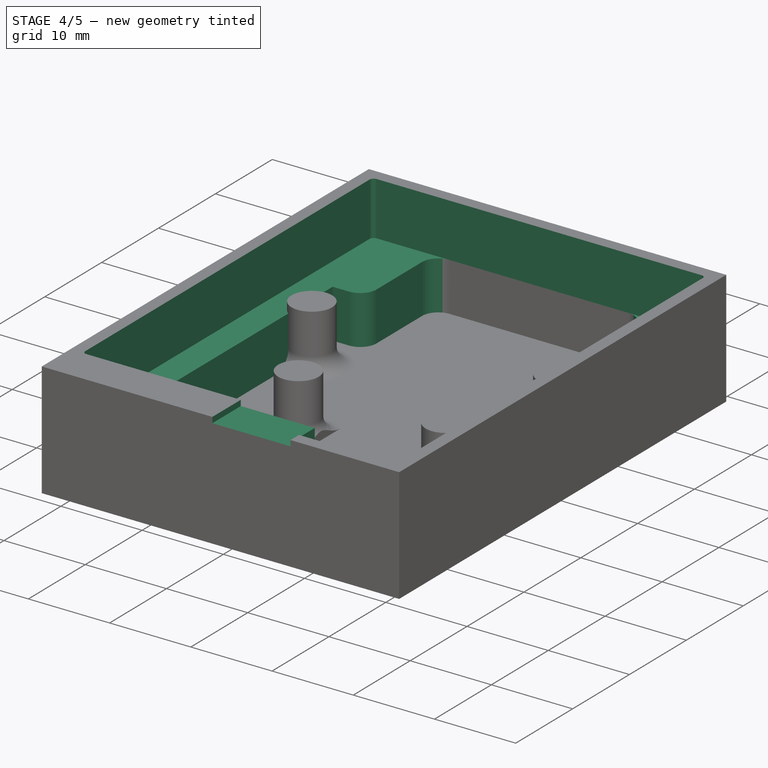
[diagram: stage 4 of 5 — iso view after this stage's code; geometry added in this stage tinted green]
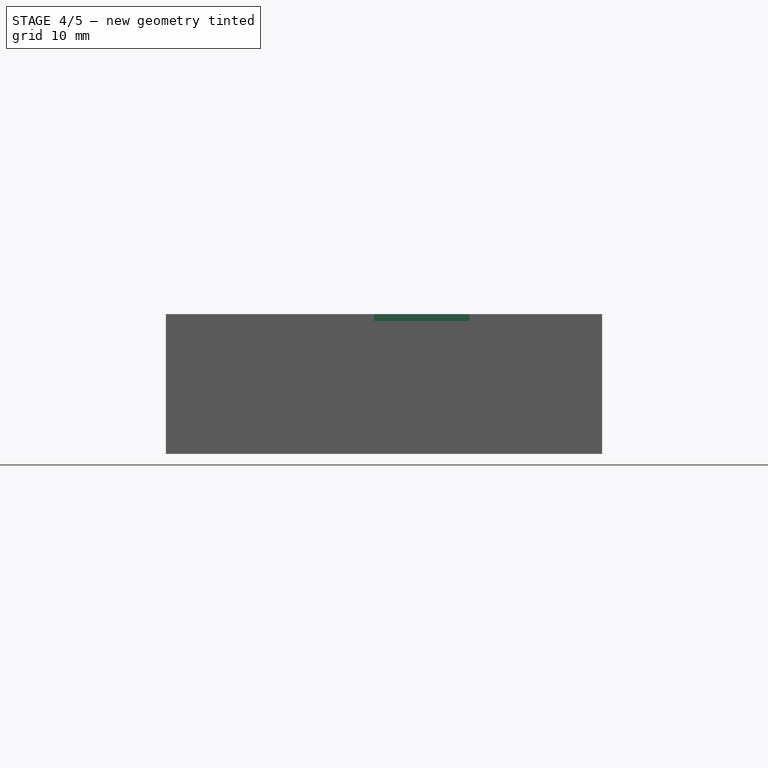
[diagram: stage 4 of 5 — front view after this stage's code; geometry added in this stage tinted green]
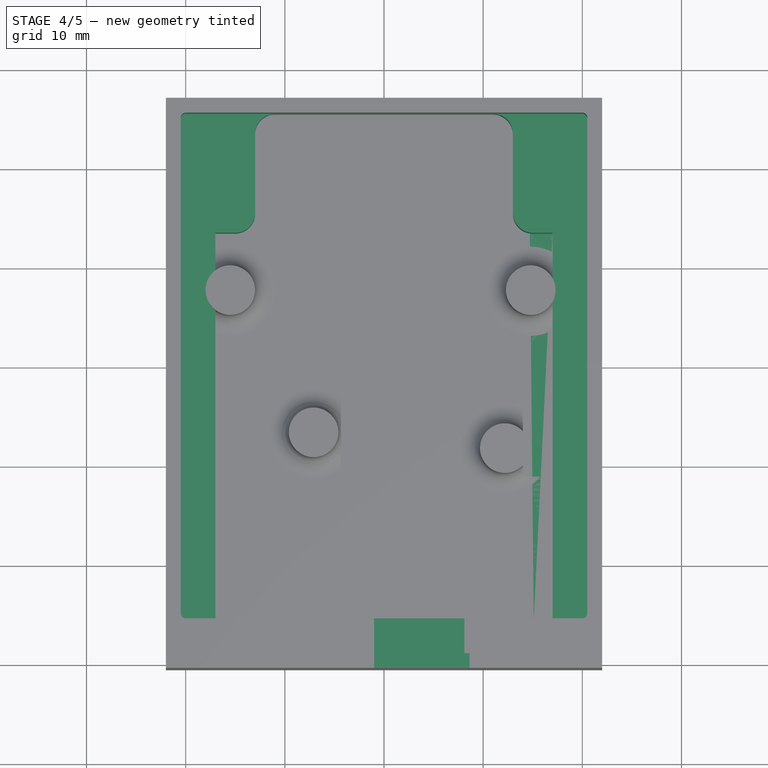
[diagram: stage 4 of 5 — top view after this stage's code; geometry added in this stage tinted green]
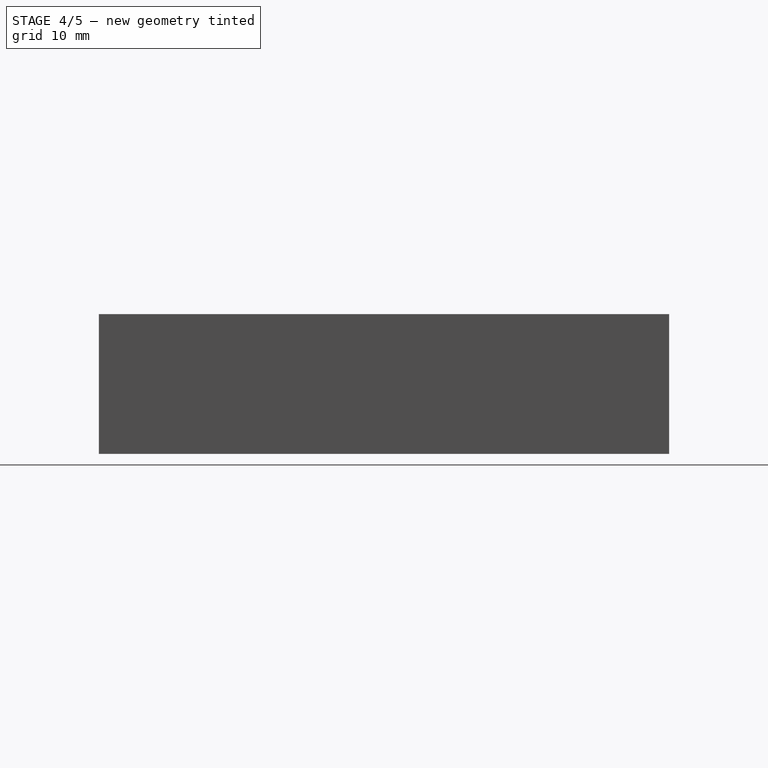
[diagram: stage 4 of 5 — right view after this stage's code; geometry added in this stage tinted green]
FEATURE [Sketcher::SketchObject] Sketch002  label="Upper Cutout"
  ExternalGeometry = -> [Sketch]
  MapMode = 5
  Placement = pos=(0,0,14.1) rot=(0,0,1;0rad)
  Support = -> [Pad]
  expr: Constraints[21] = Spreadsheet.BatteryConnectorWidth + 2 * Spreadsheet.Clearance
  expr: Constraints[20] = Spreadsheet.BatteryConnectorDepth
  expr: Constraints[11] = Spreadsheet.Clearance
  expr: Constraints[10] = Spreadsheet.Clearance
  expr: Constraints[22] = Spreadsheet.BatteryConnectorX - Spreadsheet.Clearance
  expr: Constraints[9] = Spreadsheet.Clearance
  expr: Constraints[8] = Spreadsheet.Clearance
  sketch-geometry (8):
    g0: LineSegment StartX=-20.5 StartY=25.5 StartZ=0 EndX=20.5 EndY=25.5 EndZ=0
    g1: LineSegment StartX=20.5 StartY=25.5 StartZ=0 EndX=20.5 EndY=-25.5 EndZ=0
    g2: LineSegment StartX=20.5 StartY=-25.5 StartZ=0 EndX=15.1 EndY=-25.5 EndZ=0
    g3: LineSegment StartX=-20.5 StartY=-25.5 StartZ=0 EndX=-20.5 EndY=25.5 EndZ=0
    g4: LineSegment StartX=8.1 StartY=-25.5 StartZ=0 EndX=8.1 EndY=-29 EndZ=0
    g5: LineSegment StartX=8.1 StartY=-29 StartZ=0 EndX=15.1 EndY=-29 EndZ=0
    g6: LineSegment StartX=15.1 StartY=-29 StartZ=0 EndX=15.1 EndY=-25.5 EndZ=0
    g7: LineSegment StartX=8.1 StartY=-25.5 StartZ=0 EndX=-20.5 EndY=-25.5 EndZ=0
  constraints (23):
    c: Coincident(g0,g1)
    c: Coincident(g1,g2)
    c: Coincident(g7,g3)
    c: Coincident(g3,g0)
    c: Horizontal(g0)
    c: Horizontal(g2)
    c: Vertical(g1)
    c: Vertical(g3)
    c: DistanceX(g0,g-3) = 0.5
    c: DistanceY(g-3,g0) = 0.5
    c: DistanceX(g-4,g1) = 0.5
    c: DistanceY(g1,g-4) = 0.5
    c: Vertical(g4)
    c: Coincident(g5,g4)
    c: Horizontal(g5)
    c: Vertical(g6)
    c: Coincident(g5,g6)
    c: Coincident(g2,g6)
    c: Coincident(g7,g4)
    c: Tangent(g2,g7)
    c: DistanceY(g5,g2) = 3.5
    c: DistanceX(g4,g5) = 7
    c: DistanceX(g-4,g4) = 28.1
FEATURE [PartDesign::Pocket] Pocket
  BaseFeature = -> Pad
  Length = 6.6
  Length2 = 100
  Profile = -> Sketch002
  Type = 0
  expr: Length = Spreadsheet.LedgeToLid
FEATURE [Sketcher::SketchObject] Sketch003  label="Lower Cutout"
  ExternalGeometry = -> [Pocket,Sketch]
  MapMode = 5
  Placement = pos=(0,0,7.5) rot=(0,0,1;0rad)
  Support = -> [Pocket]
  expr: Constraints[34] = Spreadsheet.Clearance
  expr: Constraints[32] = Spreadsheet.BatteryConnectorWidth + Spreadsheet.Clearance * 2
  expr: Constraints[29] = Spreadsheet.Ledge
  expr: Constraints[26] = Spreadsheet.AntennaGap
  expr: Constraints[31] = Spreadsheet.BatteryConnectorDepth
  expr: Constraints[25] = Spreadsheet.AntennaKeepout
  expr: Constraints[30] = Spreadsheet.BatteryConnectorX - Spreadsheet.Clearance
  sketch-geometry (12):
    g0: LineSegment StartX=-17 StartY=-25.5 StartZ=0 EndX=8.1 EndY=-25.5 EndZ=0
    g1: LineSegment StartX=8.1 StartY=-25.5 StartZ=0 EndX=8.1 EndY=-29 EndZ=0
    g2: LineSegment StartX=8.1 StartY=-29 StartZ=0 EndX=15.1 EndY=-29 EndZ=0
    g3: LineSegment StartX=15.1 StartY=-29 StartZ=0 EndX=15.1 EndY=-25.5 EndZ=0
    g4: LineSegment StartX=15.1 StartY=-25.5 StartZ=0 EndX=17 EndY=-25.5 EndZ=0
    g5: LineSegment StartX=17 StartY=-25.5 StartZ=0 EndX=17 EndY=13.5 EndZ=0
    g6: LineSegment StartX=17 StartY=13.5 StartZ=0 EndX=13 EndY=13.5 EndZ=0
    g7: LineSegment StartX=13 StartY=13.5 StartZ=0 EndX=13 EndY=25.5 EndZ=0
    g8: LineSegment StartX=13 StartY=25.5 StartZ=0 EndX=-13 EndY=25.5 EndZ=0
    g9: LineSegment StartX=-13 StartY=25.5 StartZ=0 EndX=-13 EndY=13.5 EndZ=0
    g10: LineSegment StartX=-13 StartY=13.5 StartZ=0 EndX=-17 EndY=13.5 EndZ=0
    g11: LineSegment StartX=-17 StartY=13.5 StartZ=0 EndX=-17 EndY=-25.5 EndZ=0
  constraints (36):
    c: Coincident(g1,g0)
    c: Vertical(g1)
    c: Coincident(g2,g1)
    c: Horizontal(g2)
    c: Vertical(g3)
    c: Vertical(g5)
    c: Coincident(g6,g5)
    c: Vertical(g7)
    c: Horizontal(g8)
    c: Vertical(g9)
    c: Horizontal(g10)
    c: Coincident(g11,g0)
    c: Vertical(g11)
    c: Horizontal(g6)
    c: Horizontal(g0)
    c: Coincident(g3,g4)
    c: Horizontal(g4)
    c: Coincident(g7,g6)
    c: Coincident(g10,g9)
    c: Coincident(g9,g8)
    c: Coincident(g8,g7)
    c: Coincident(g10,g11)
    c: Coincident(g2,g3)
    c: PointOnObject(g7,g-3)
    c: Equal(g9,g7)
    c: DistanceY(g7,g7) = 12
    c: DistanceX(g9,g6) = 26
    c: Symmetric(g9,g6,g-2)
    c: Symmetric(g10,g5,g-2)
    c: DistanceX(g-4,g10) = 3
    c: DistanceX(g-4,g0) = 28.1
    c: DistanceY(g1,g1) = 3.5
    c: DistanceX(g2,g2) = 7
    c: Coincident(g5,g4)
    c: DistanceY(g0,g-4) = 0.5
    c: PointOnObject(g3,g0)
FEATURE [PartDesign::Pocket] Pocket001
  BaseFeature = -> Pocket
  Length = 6
  Length2 = 100
  Profile = -> Sketch003
  Type = 0
  expr: Length = Spreadsheet.BatteryHeight
FEATURE [Sketcher::SketchObject] Sketch004  label="UART"
  MapMode = 5
  Placement = pos=(0,-30.5,0) rot=(1,0,0;1.5708rad)
  Support = -> [Pocket001]
  expr: Constraints[11] = Spreadsheet.LedgeHeight + Spreadsheet.PCBThickness + Spreadsheet.UARTPosY - Spreadsheet.UARTClearance
  expr: Constraints[10] = Spreadsheet.UARTHeight + Spreadsheet.UARTClearance * 2
  expr: Constraints[9] = Spreadsheet.UARTWidth + Spreadsheet.UARTClearance * 2
  expr: Constraints[8] = Spreadsheet.UARTPosX - Spreadsheet.Width / 2 - Spreadsheet.UARTClearance
  sketch-geometry (4):
    g0: LineSegment StartX=-1 StartY=16.94 StartZ=0 EndX=8.62 EndY=16.94 EndZ=0
    g1: LineSegment StartX=8.62 StartY=16.94 StartZ=0 EndX=8.62 EndY=13.4 EndZ=0
    g2: LineSegment StartX=8.62 StartY=13.4 StartZ=0 EndX=-1 EndY=13.4 EndZ=0
    g3: LineSegment StartX=-1 StartY=13.4 StartZ=0 EndX=-1 EndY=16.94 EndZ=0
  constraints (12):
    c: Coincident(g0,g1)
    c: Coincident(g1,g2)
    c: Coincident(g2,g3)
    c: Coincident(g3,g0)
    c: Horizontal(g0)
    c: Horizontal(g2)
    c: Vertical(g1)
    c: Vertical(g3)
    c: DistanceX(g-1,g2) = -1
    c: DistanceX(g2,g2) = 9.62
    c: DistanceY(g1,g1) = 3.54
    c: DistanceY(g-1,g1) = 13.4
FEATURE [PartDesign::Pocket] Pocket002
  BaseFeature = -> Pocket001
  Length = 5
  Length2 = 100
  Profile = -> Sketch004
  Type = 0
  expr: Length = Spreadsheet.BatteryConnectorDepth + Spreadsheet.WallThickness
FEATURE [PartDesign::Fillet] Fillet  label="FilletInnerTopCorners"
  Base = -> Pocket002 [Edge33,Edge39,Edge35,Edge29]
  BaseFeature = -> Pocket002
  Radius = 0.5
  expr: Radius = Spreadsheet.Clearance
FEATURE [PartDesign::Fillet] Fillet001  label="FilletAntennaBay"
  Base = -> Fillet [Edge94,Edge84,Edge75,Edge74]
  BaseFeature = -> Fillet
  Radius = 2
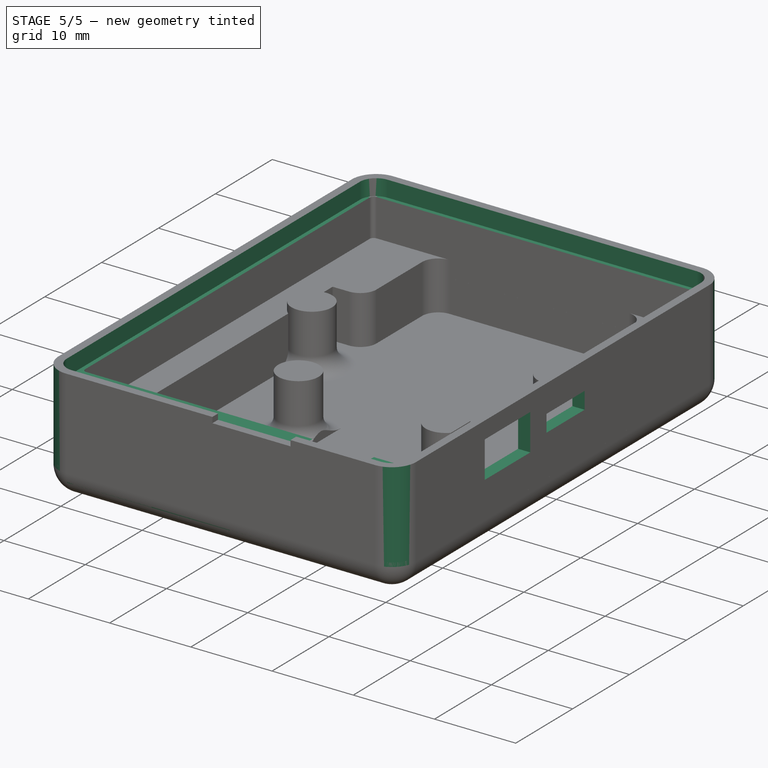
[diagram: stage 5 of 5 — iso view after this stage's code; geometry added in this stage tinted green]
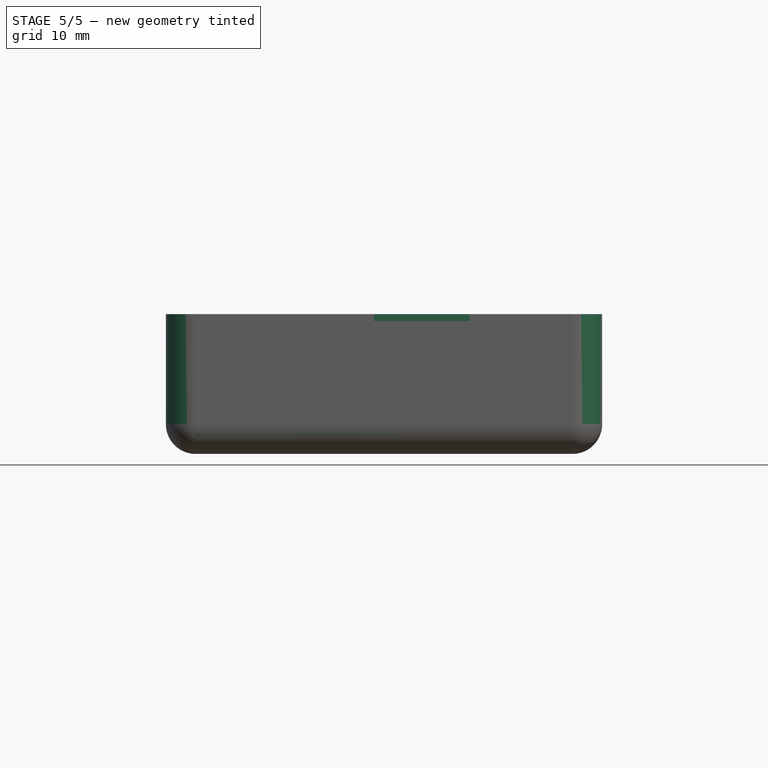
[diagram: stage 5 of 5 — front view after this stage's code; geometry added in this stage tinted green]
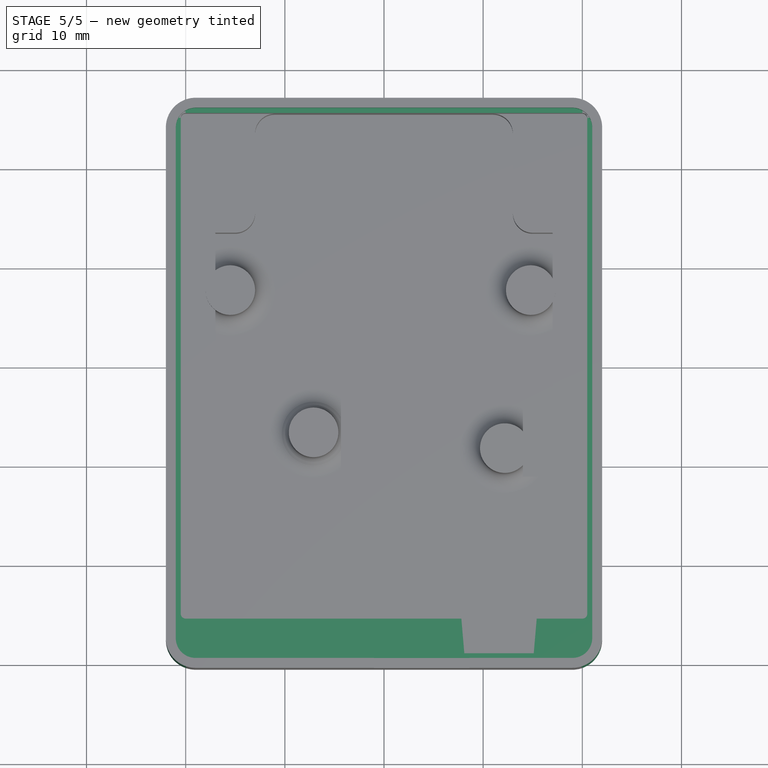
[diagram: stage 5 of 5 — top view after this stage's code; geometry added in this stage tinted green]
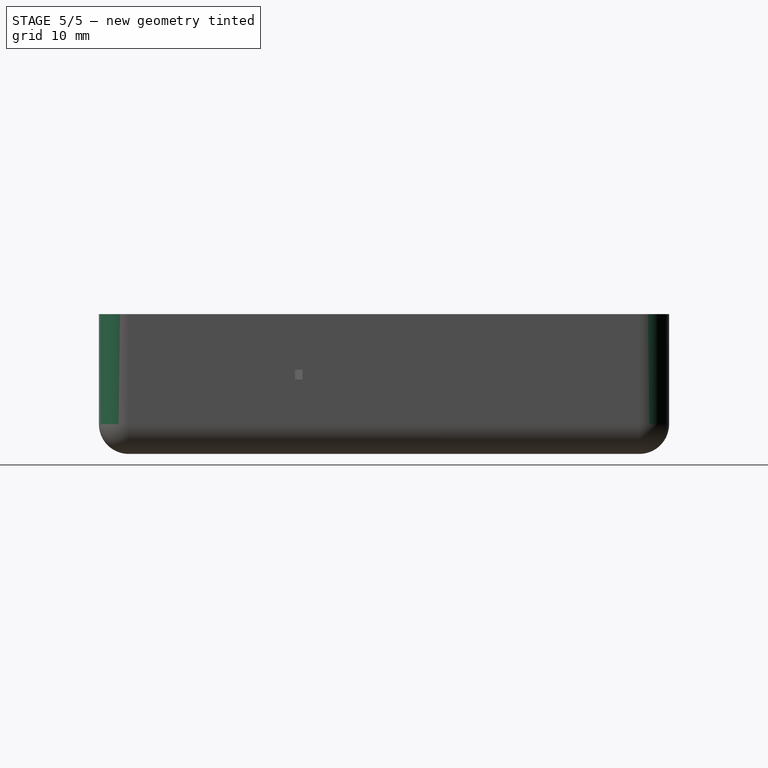
[diagram: stage 5 of 5 — right view after this stage's code; geometry added in this stage tinted green]
FEATURE [PartDesign::Fillet] Fillet002  label="FilletBatteryConnectorCorners"
  Base = -> Fillet001 [Edge36,Edge96]
  BaseFeature = -> Fillet001
  Radius = 0.3
FEATURE [Sketcher::SketchObject] Sketch005  label="USB"
  MapMode = 5
  Placement = pos=(22,0,0) rot=(0.57735,0.57735,0.57735;2.0944rad)
  Support = -> [Fillet002]
  expr: Constraints[8] = Spreadsheet.USBWidth
  expr: Constraints[11] = Spreadsheet.LedgeHeight
  expr: Constraints[10] = Spreadsheet.Height / 2 - Spreadsheet.USBPosX
  expr: Constraints[9] = Spreadsheet.USBHeight
  sketch-geometry (4):
    g0: LineSegment StartX=-15.45 StartY=12 StartZ=0 EndX=-7.45 EndY=12 EndZ=0
    g1: LineSegment StartX=-7.45 StartY=12 StartZ=0 EndX=-7.45 EndY=7.5 EndZ=0
    g2: LineSegment StartX=-7.45 StartY=7.5 StartZ=0 EndX=-15.45 EndY=7.5 EndZ=0
    g3: LineSegment StartX=-15.45 StartY=7.5 StartZ=0 EndX=-15.45 EndY=12 EndZ=0
  constraints (12):
    c: Coincident(g0,g1)
    c: Coincident(g1,g2)
    c: Coincident(g2,g3)
    c: Coincident(g3,g0)
    c: Horizontal(g0)
    c: Horizontal(g2)
    c: Vertical(g1)
    c: Vertical(g3)
    c: DistanceX(g2,g2) = 8
    c: DistanceY(g3,g3) = 4.5
    c: DistanceX(g2,g-1) = 15.45
    c: DistanceY(g-1,g1) = 7.5
FEATURE [PartDesign::Pocket] Pocket003
  BaseFeature = -> Fillet002
  Length = 0
  Length2 = 100
  Profile = -> Sketch005
  Type = 2
FEATURE [Sketcher::SketchObject] Sketch006  label="Power"
  MapMode = 5
  Placement = pos=(22,0,0) rot=(0.57735,0.57735,0.57735;2.0944rad)
  Support = -> [Pocket003]
  expr: Constraints[11] = Spreadsheet.LedgeHeight + Spreadsheet.PCBThickness - Spreadsheet.SwitchClearance
  expr: Constraints[10] = Spreadsheet.SwitchPosX - Spreadsheet.Height / 2
  expr: Constraints[9] = Spreadsheet.SwitchHeight + Spreadsheet.SwitchClearance * 2
  expr: Constraints[8] = Spreadsheet.SwitchWidth
  sketch-geometry (4):
    g0: LineSegment StartX=-4.6 StartY=10.7 StartZ=0 EndX=2.1 EndY=10.7 EndZ=0
    g1: LineSegment StartX=2.1 StartY=10.7 StartZ=0 EndX=2.1 EndY=8.6 EndZ=0
    g2: LineSegment StartX=2.1 StartY=8.6 StartZ=0 EndX=-4.6 EndY=8.6 EndZ=0
    g3: LineSegment StartX=-4.6 StartY=8.6 StartZ=0 EndX=-4.6 EndY=10.7 EndZ=0
  constraints (12):
    c: Coincident(g0,g1)
    c: Coincident(g1,g2)
    c: Coincident(g2,g3)
    c: Coincident(g3,g0)
    c: Horizontal(g0)
    c: Horizontal(g2)
    c: Vertical(g1)
    c: Vertical(g3)
    c: DistanceX(g2,g2) = 6.7
    c: DistanceY(g1,g1) = 2.1
    c: DistanceX(g-1,g2) = -4.6
    c: DistanceY(g-1,g1) = 8.6
FEATURE [PartDesign::Pocket] Pocket004
  BaseFeature = -> Pocket003
  Length = 5
  Length2 = 100
  Profile = -> Sketch006
  Type = 2
FEATURE [Sketcher::SketchObject] Sketch007  label="Lid Cutout"
  ExternalGeometry = -> [Pocket004]
  MapMode = 5
  Placement = pos=(0,0,14.1) rot=(0,0,1;0rad)
  expr: Constraints[11] = Spreadsheet.LipThickness
  expr: Constraints[5] = Spreadsheet.LipThickness
  expr: Constraints[2] = Spreadsheet.LipThickness
  expr: Constraints[0] = Spreadsheet.LipThickness
  sketch-geometry (4):
    g0: LineSegment StartX=21 StartY=-29.5 StartZ=0 EndX=-21 EndY=-29.5 EndZ=0
    g1: LineSegment StartX=-21 StartY=-29.5 StartZ=0 EndX=-21 EndY=26 EndZ=0
    g2: LineSegment StartX=-21 StartY=26 StartZ=0 EndX=21 EndY=26 EndZ=0
    g3: LineSegment StartX=21 StartY=26 StartZ=0 EndX=21 EndY=-29.5 EndZ=0
  constraints (12):
    c: DistanceX(g-4,g1) = 1
    c: Coincident(g1,g2)
    c: DistanceY(g1,g-4) = 1
    c: Horizontal(g2)
    c: Coincident(g3,g2)
    c: DistanceX(g2,g-5) = 1
    c: Coincident(g0,g3)
    c: Coincident(g0,g1)
    c: Horizontal(g0)
    c: Vertical(g1)
    c: Vertical(g3)
    c: DistanceY(g-5,g0) = 1
FEATURE [PartDesign::Pocket] Pocket005
  BaseFeature = -> Pocket004
  Length = 2
  Length2 = 100
  Profile = -> Sketch007
  Type = 0
  expr: Length = Spreadsheet.LipHeight
FEATURE [TechDraw::DrawSVGTemplate] Template
  EditableTexts = Designed_by_Name=Gavan Fantom; Drawing_number=1; FC-Date=8/10/2018; FC-SC=Scale; FC-SH=1; FC-Title=Tail v2 tag case; Subtitle=Main housing and lid; Weight=Weight
  Height = 210
  Orientation = 1
  Width = 297
FEATURE [PartDesign::Fillet] Fillet004  label="FilletLidMating"
  Base = -> Pocket005 [Edge46,Edge45,Edge44,Edge48]
  BaseFeature = -> Pocket005
  Radius = 2
  expr: Radius = Spreadsheet.LidMatingFillet
FEATURE [PartDesign::Fillet] Fillet010  label="FilletExternal"
  Base = -> Fillet004 [Face61,Edge143,Edge146,Edge142,Edge145]
  BaseFeature = -> Fillet004
  Radius = 3
  expr: Radius = Spreadsheet.BaseMainFillet
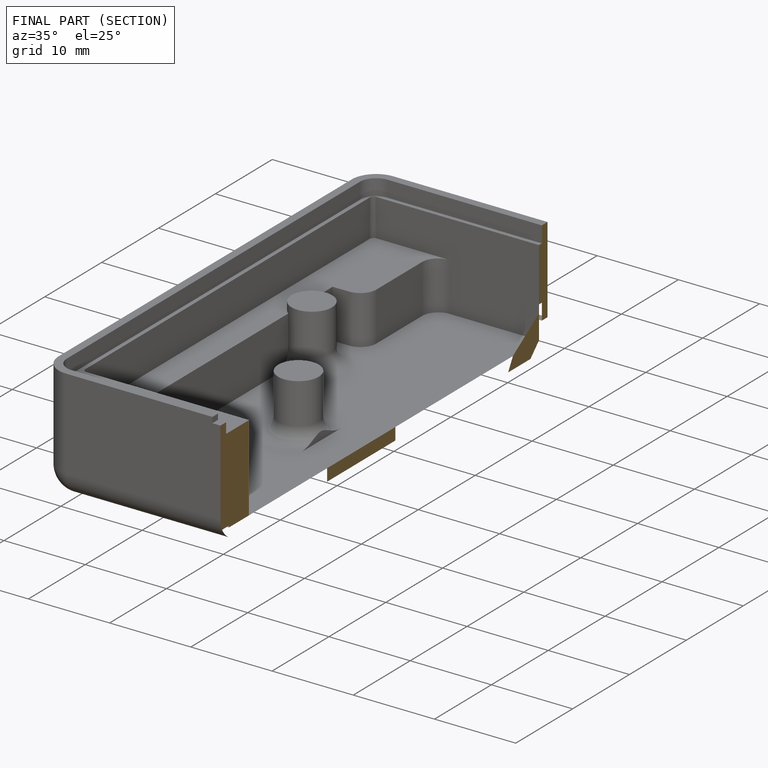
[diagram: finished part — half-section view (interior)]
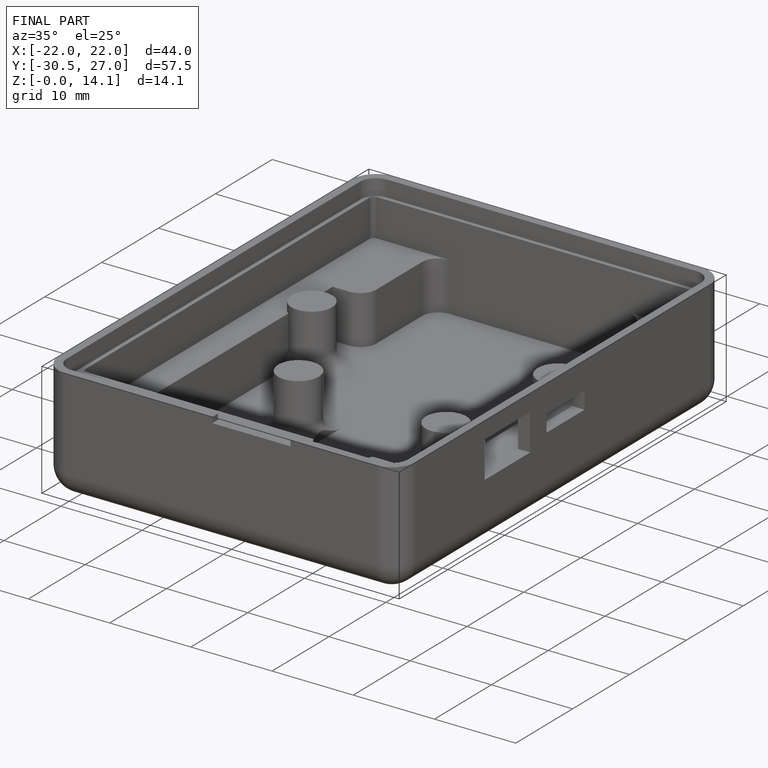
[diagram: finished part — iso view with bounding-box wireframe]
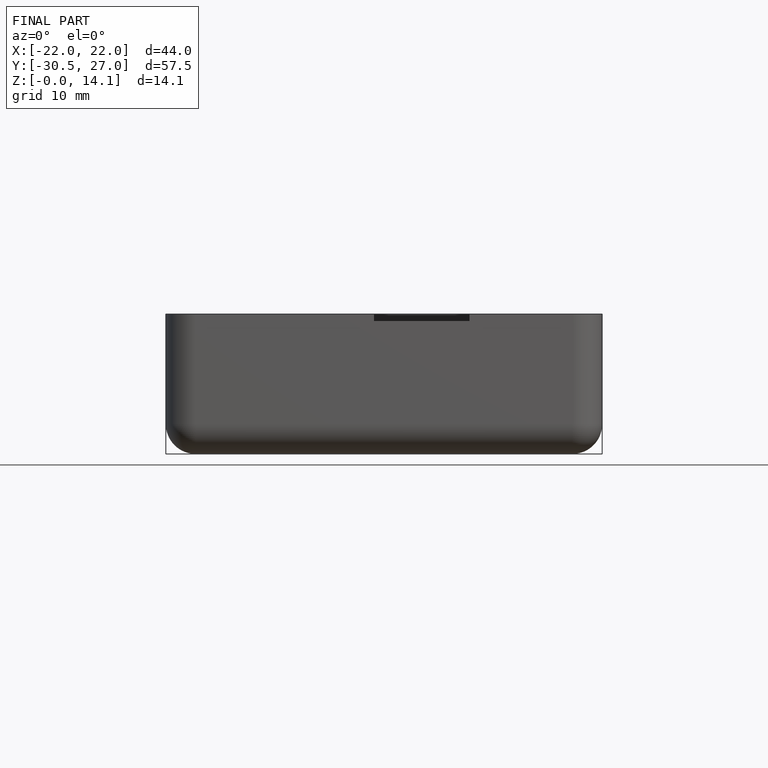
[diagram: finished part — front view with bounding-box wireframe]
